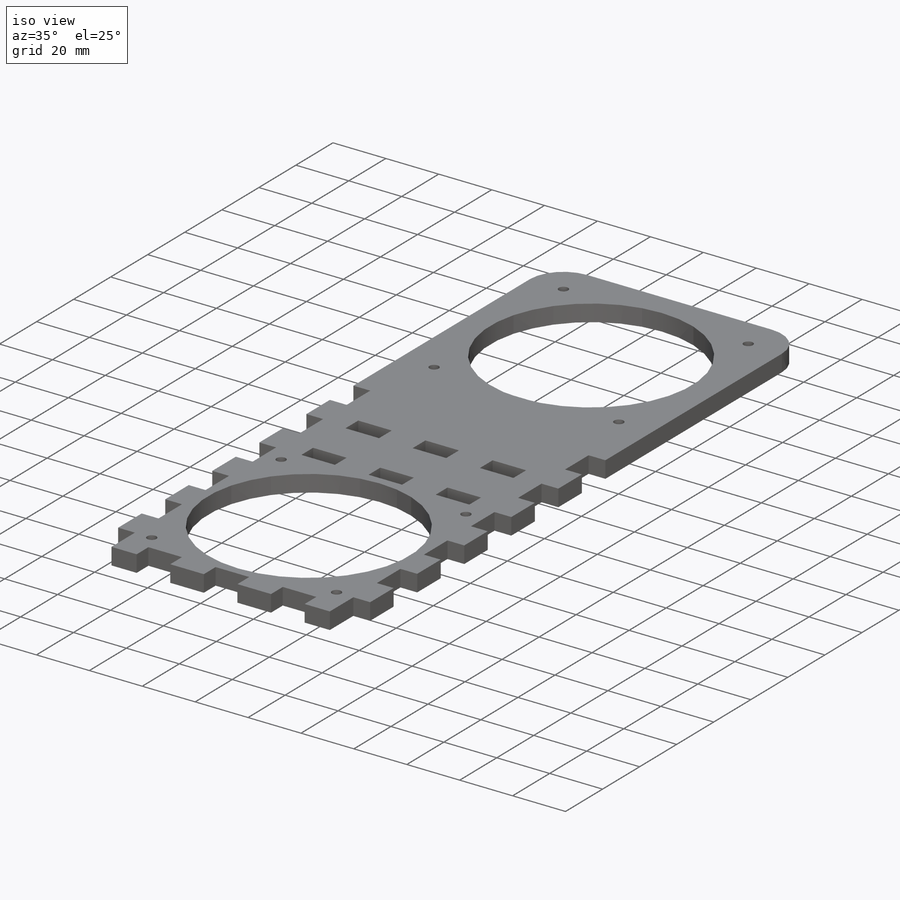
[diagram: iso view]
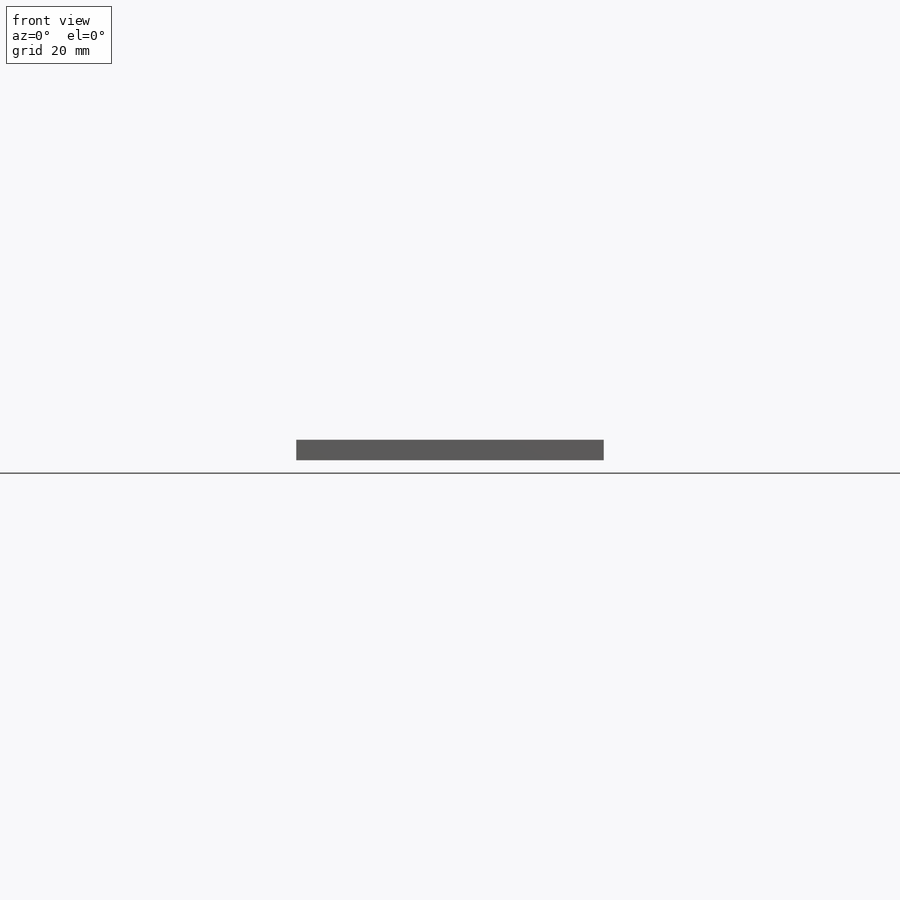
[diagram: front view]
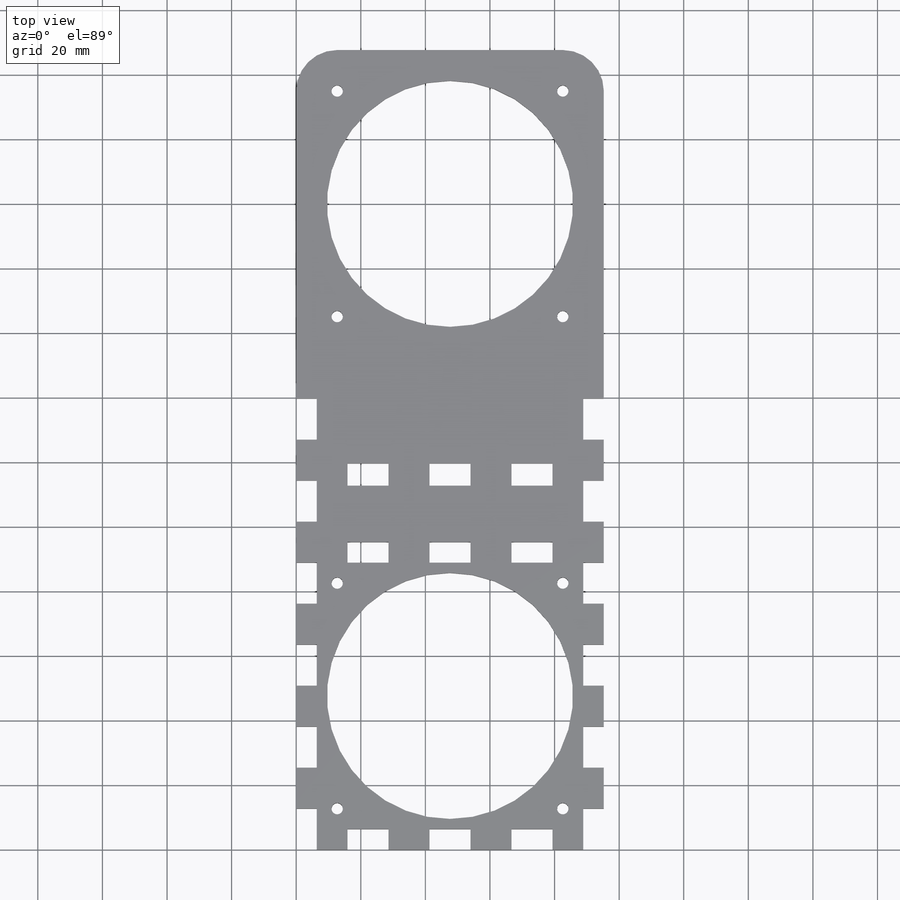
[diagram: top view]
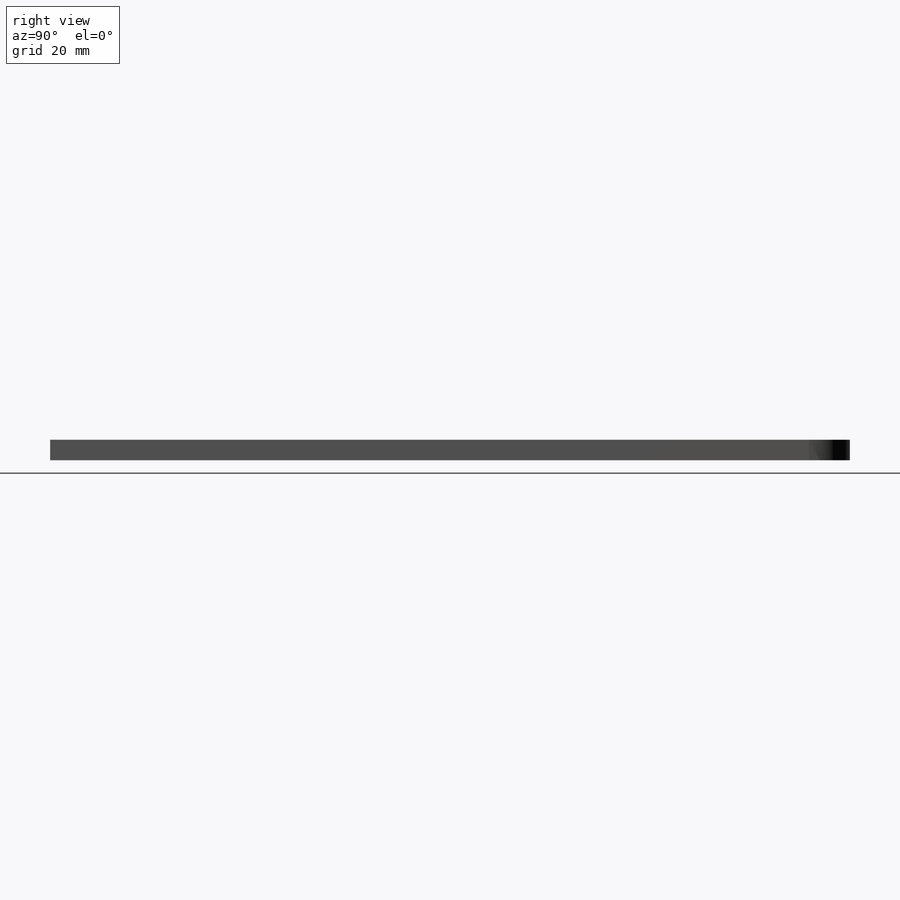
[diagram: right view]
SOLIDWORKS PART (.sldprt)
format: sldprt  version: not decoded by parser v0  size: 413,696 bytes
history: native  units: mm
features: sketch x9, cut_extrude x7, pattern_circular x2, material x1, extrude x1, pattern_linear x1, fillet x1 (+13 scaffold rows collapsed)
feature tree (35):
  scaffold x13  (default folders/planes/origin — collapsed)
  material  "Pine"
  sketch  "Sketch1"  dims[D1=95.25mm D2=247.65mm]
  extrude  "Boss-Extrude1"  Depth=6.35mm
  sketch  "Sketch2"  dims[c1.D1=76.2mm c1.D2=47.625mm c1.D3=47.625mm c2.D2=47.625mm]
  cut_extrude  "Cut-Extrude1"  [1 undecoded]
  sketch  "Sketch3"  dims[c1.D1=12.7mm c1.D2=12.7mm c1.D3=6.35mm c2.D1=12.7mm]
  cut_extrude  "Cut-Extrude2"  [1 undecoded]
  pattern_linear  "LPattern1"  Count1=6 Count2=1 Spacing1=25.4mm Spacing2=2.54mm
  sketch  "Sketch4"  dims[D1=12.7mm D2=6.35mm D3=12.7mm D4=12.7mm]
  cut_extrude  "Cut-Extrude3"  [1 undecoded]
  sketch  "Sketch5"  dims[D1=88.9mm D2=6.35mm D3=12.7mm D4=12.7mm D5=12.7mm]
  cut_extrude  "Cut-Extrude4"  [1 undecoded]
  sketch  "Sketch7"  dims[D8=3.5mm D1=304.8mm D2=85.0deg D3=38.1mm D4=127.0mm D5=50.8mm D6=6.35mm D7=30.0deg D9=101.6mm D10=19.05mm D11=24.892mm D12=19.05mm D13=5.0deg D14=~16.474835mm]
  sketch  "Sketch8"
  cut_extrude  "Cut-Extrude5"  [1 undecoded]
  sketch  "Sketch9"  dims[D2=3.5mm D1=69.85mm]
  cut_extrude  "Cut-Extrude6"  [1 undecoded]
  pattern_circular  "CirPattern1"  Count=4 Angle=360deg
  fillet  "Fillet1"  Radius=12.7mm
  sketch  "Sketch10"  dims[D3=3.5mm D1=69.85mm D2=69.85mm]
  cut_extrude  "Cut-Extrude7"  [1 undecoded]
  pattern_circular  "CirPattern2"  Count=4 Angle=360deg
decode coverage: 13 of 21 modeling features carry decoded parameters
note: ~ marks probable driven/reference dimensions
note: 7 parameter values undecoded
summary: no parameter record found for 7 features
note: suppression state not decoded; provenance and decode notes live in map.json
